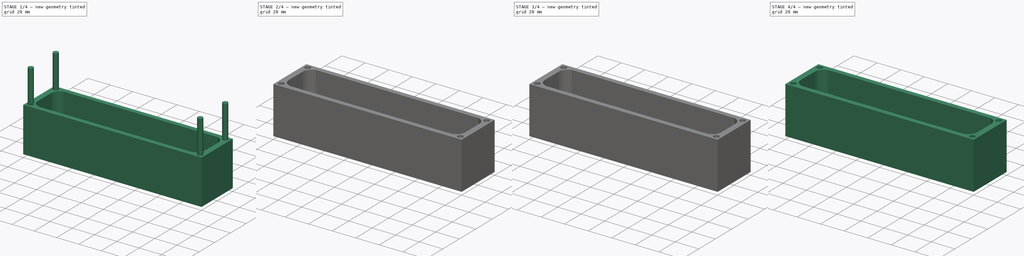
[diagram: build sequence overview — one tinted view per stage of 4, left to right]
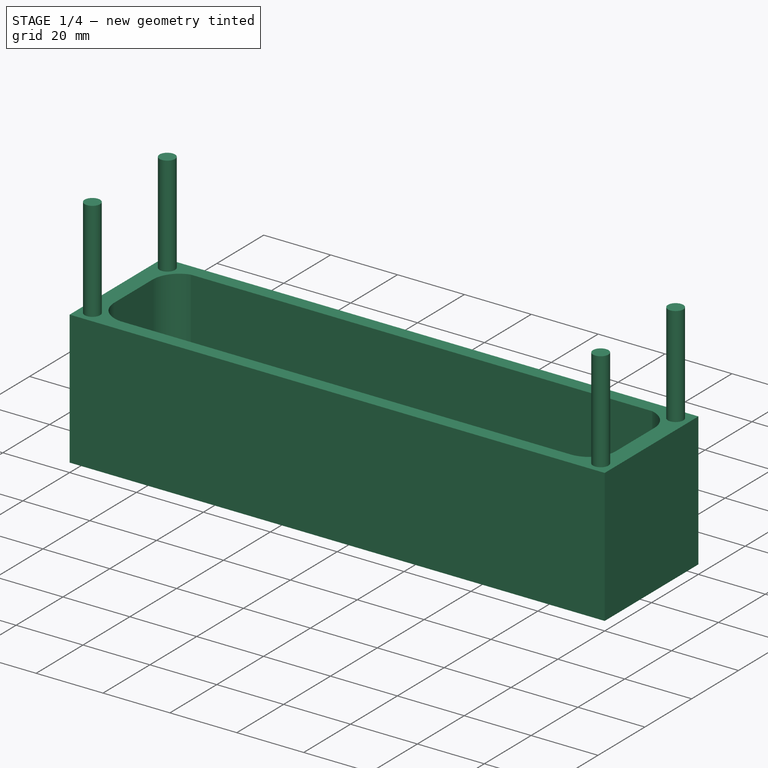
[diagram: stage 1 of 4 — iso view after this stage's code; geometry added in this stage tinted green]
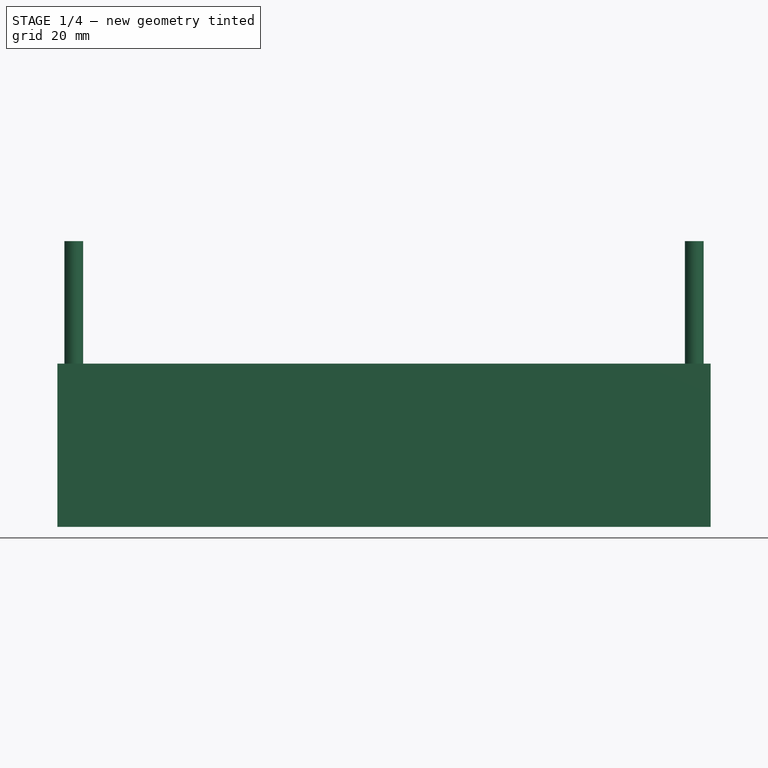
[diagram: stage 1 of 4 — front view after this stage's code; geometry added in this stage tinted green]
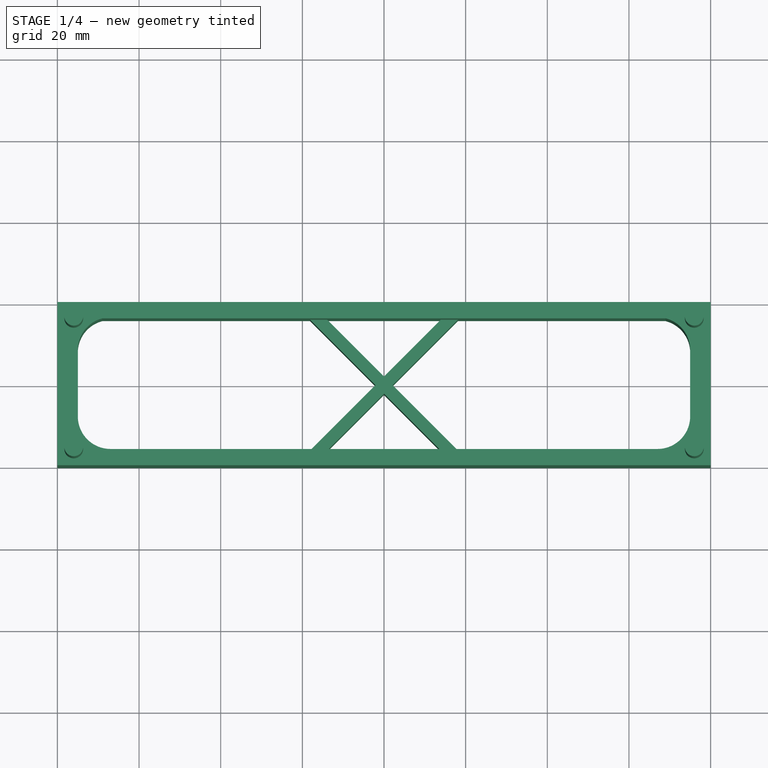
[diagram: stage 1 of 4 — top view after this stage's code; geometry added in this stage tinted green]
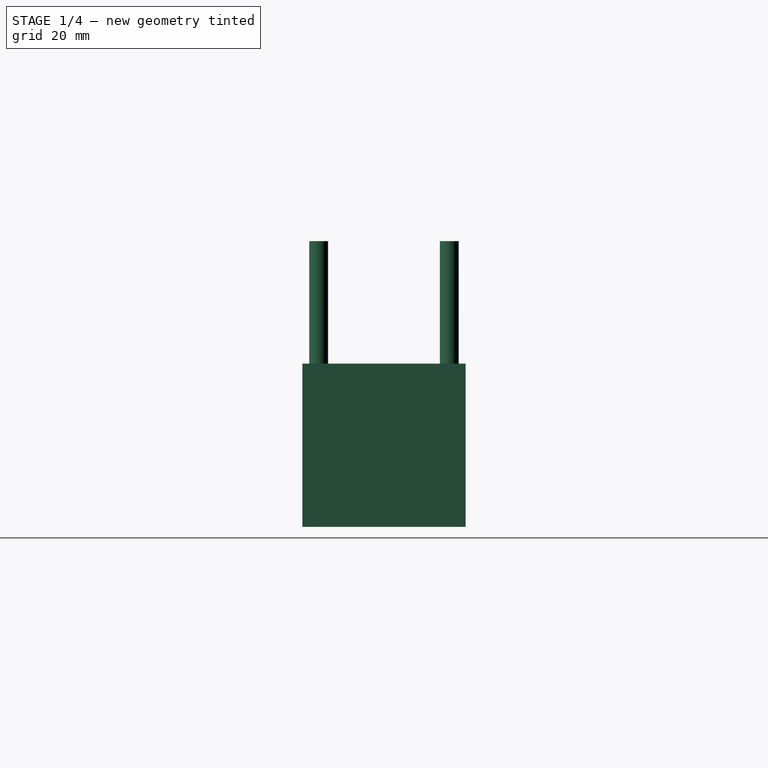
[diagram: stage 1 of 4 — right view after this stage's code; geometry added in this stage tinted green]
FCSTD DOCUMENT  (FreeCAD 0.14R3650 (Git))
Label: enclosure
License: CC-BY 3.0
LicenseURL: http://creativecommons.org/licenses/by/3.0/
objects: Sketcher::SketchObject×7, PartDesign::Pad×7, Part::Cut×3, Part::MultiFuse×3
note: 27 computed .brp shape members not serialized (recipe doc carries the construction recipe); baked Part::Feature solids carry a one-line shape summary decoded from their .brp

FEATURE [Sketcher::SketchObject] Sketch002
  sketch-geometry (12):
    g0: LineSegment StartX=-80 StartY=-20 StartZ=0 EndX=80 EndY=-20 EndZ=0
    g1: LineSegment StartX=80 StartY=-20 StartZ=0 EndX=80 EndY=20 EndZ=0
    g2: LineSegment StartX=80 StartY=20 StartZ=0 EndX=-80 EndY=20 EndZ=0
    g3: LineSegment StartX=-80 StartY=20 StartZ=0 EndX=-80 EndY=-20 EndZ=0
    g4: LineSegment StartX=75 StartY=8.25403 StartZ=0 EndX=75 EndY=-8 EndZ=0
    g5: LineSegment StartX=67 StartY=-16 StartZ=0 EndX=-67 EndY=-16 EndZ=0
    g6: LineSegment StartX=-75 StartY=-8 StartZ=0 EndX=-75 EndY=8.25403 EndZ=0
    g7: ArcOfCircle CenterX=-67 CenterY=8.25403 CenterZ=0 NormalX=0 NormalY=0 NormalZ=1 Radius=8 StartAngle=1.82348 EndAngle=3.14159
    g8: ArcOfCircle CenterX=-67 CenterY=-8 CenterZ=0 NormalX=0 NormalY=0 NormalZ=1 Radius=8 StartAngle=3.14159 EndAngle=4.71239
    g9: ArcOfCircle CenterX=67 CenterY=8.25403 CenterZ=0 NormalX=0 NormalY=0 NormalZ=1 Radius=8 StartAngle=0 EndAngle=1.31812
    g10: ArcOfCircle CenterX=67 CenterY=-8 CenterZ=0 NormalX=0 NormalY=0 NormalZ=1 Radius=8 StartAngle=4.71239 EndAngle=6.28319
    g11: LineSegment StartX=-69 StartY=16 StartZ=0 EndX=69 EndY=16 EndZ=0
  constraints (34):
    c: Horizontal(g0)
    c: Coincident(g0,g1)
    c: Vertical(g1)
    c: Horizontal(g2)
    c: Coincident(g3,g0)
    c: Vertical(g3)
    c: Distance(g0) = 160
    c: Symmetric(g0,g0,g-2)
    c: DistanceY(g2,g0) = -40
    c: DistanceY(g-1,g0) = -20
    c: Coincident(g3,g2)
    c: Coincident(g1,g2)
    c: Horizontal(g5)
    c: Vertical(g4)
    c: Vertical(g6)
    c: Tangent(g6,g7)
    c: Tangent(g5,g8)
    c: Tangent(g6,g8)
    c: Tangent(g4,g9)
    c: Tangent(g4,g10)
    c: Tangent(g5,g10)
    c: Radius(g7) = 8
    c: Radius(g8) = 8
    c: Radius(g9) = 8
    c: Radius(g10) = 8
    c: DistanceY(g5,g0) = -4
    c: DistanceX(g2,g6) = 5
    c: DistanceX(g4,g1) = 5
    c: Coincident(g11,g7)
    c: Coincident(g11,g9)
    c: Horizontal(g11)
    c: DistanceY(g7,g2) = 4
    c: Symmetric(g7,g9,g-2)
    c: DistanceX(g6,g7) = 6
FEATURE [PartDesign::Pad] Pad002  label="Sidewall Solid"
  Length = 40
  Length2 = 100
  Sketch = -> Sketch002
  Type = 0
FEATURE [Sketcher::SketchObject] Sketch006
  sketch-geometry (8):
    g0: Circle CenterX=-76 CenterY=16 CenterZ=0 NormalX=0 NormalY=0 NormalZ=1 Radius=2.3
    g1: Circle CenterX=-76 CenterY=-16 CenterZ=0 NormalX=0 NormalY=0 NormalZ=1 Radius=2.3
    g2: Circle CenterX=76 CenterY=16 CenterZ=0 NormalX=0 NormalY=0 NormalZ=1 Radius=2.3
    g3: Circle CenterX=76 CenterY=-16 CenterZ=0 NormalX=0 NormalY=0 NormalZ=1 Radius=2.3
    g4: LineSegment [constr] StartX=-76 StartY=16 StartZ=0 EndX=76 EndY=16 EndZ=0
    g5: LineSegment [constr] StartX=76 StartY=16 StartZ=0 EndX=76 EndY=-16 EndZ=0
    g6: LineSegment [constr] StartX=76 StartY=-16 StartZ=0 EndX=-76 EndY=-16 EndZ=0
    g7: LineSegment [constr] StartX=-76 StartY=-16 StartZ=0 EndX=-76 EndY=16 EndZ=0
  constraints (20):
    c: Radius(g0) = 2.3
    c: Radius(g1) = 2.3
    c: Radius(g3) = 2.3
    c: Radius(g2) = 2.3
    c: Coincident(g4,g5)
    c: Coincident(g5,g6)
    c: Horizontal(g4)
    c: Horizontal(g6)
    c: Vertical(g5)
    c: Vertical(g7)
    c: Distance(g4,g6) = 32
    c: Symmetric(g4,g4,g-2)
    c: Coincident(g4,g7)
    c: Coincident(g6,g7)
    c: Symmetric(g4,g6,g-1)
    c: Distance(g4,g4) = 152
    c: Coincident(g0,g4)
    c: Coincident(g1,g6)
    c: Coincident(g2,g4)
    c: Coincident(g3,g5)
FEATURE [PartDesign::Pad] Pad005  label="Back Panel Screw Holes"
  Length = 70
  Length2 = 100
  Sketch = -> Sketch006
  Type = 0
FEATURE [Sketcher::SketchObject] Sketch007
  sketch-geometry (12):
    g0: LineSegment StartX=-21.1213 StartY=19 StartZ=0 EndX=-2.12132 EndY=0 EndZ=0
    g1: LineSegment StartX=-2.12132 StartY=0 StartZ=0 EndX=-21.1213 EndY=-19 EndZ=0
    g2: LineSegment StartX=-21.1213 StartY=-19 StartZ=0 EndX=-16.8787 EndY=-19 EndZ=0
    g3: LineSegment StartX=-16.8787 StartY=-19 StartZ=0 EndX=0 EndY=-2.12132 EndZ=0
    g4: LineSegment StartX=0 StartY=-2.12132 StartZ=0 EndX=16.8787 EndY=-19 EndZ=0
    g5: LineSegment StartX=16.8787 StartY=-19 StartZ=0 EndX=21.1213 EndY=-19 EndZ=0
    g6: LineSegment StartX=21.1213 StartY=-19 StartZ=0 EndX=2.12132 EndY=0 EndZ=0
    g7: LineSegment StartX=2.12132 StartY=0 StartZ=0 EndX=21.1213 EndY=19 EndZ=0
    g8: LineSegment StartX=21.1213 StartY=19 StartZ=0 EndX=16.8787 EndY=19 EndZ=0
    g9: LineSegment StartX=16.8787 StartY=19 StartZ=0 EndX=0 EndY=2.12132 EndZ=0
    g10: LineSegment StartX=0 StartY=2.12132 StartZ=0 EndX=-16.8787 EndY=19 EndZ=0
    g11: LineSegment StartX=-16.8787 StartY=19 StartZ=0 EndX=-21.1213 EndY=19 EndZ=0
  constraints (34):
    c: PointOnObject(g0,g-1)
    c: Coincident(g0,g1)
    c: Coincident(g1,g2)
    c: Horizontal(g2)
    c: Coincident(g2,g3)
    c: Coincident(g3,g4)
    c: Coincident(g4,g5)
    c: Coincident(g5,g6)
    c: Coincident(g6,g7)
    c: Coincident(g7,g8)
    c: Coincident(g8,g9)
    c: Coincident(g9,g10)
    c: Coincident(g10,g11)
    c: Coincident(g11,g0)
    c: Horizontal(g11)
    c: Parallel(g0,g10)
    c: Parallel(g9,g7)
    c: Parallel(g1,g3)
    c: Parallel(g4,g6)
    c: Angle(g9,g10) = 1.5708
    c: Angle(g6,g7) = 1.5708
    c: Horizontal(g5)
    c: Tangent(g10,g6)
    c: Tangent(g0,g4)
    c: Tangent(g1,g9)
    c: Tangent(g3,g7)
    c: Distance(g9,g6) = 3
    c: Distance(g3,g6) = 3
    c: Horizontal(g8)
    c: Symmetric(g0,g1,g-1)
    c: DistanceY(g10,g8) = 0
    c: DistanceY(g4,g2) = 0
    c: DistanceY(g0,g1) = -38
    c: Symmetric(g0,g6,g-2)
FEATURE [PartDesign::Pad] Pad006  label="X Support"
  Length = 20
  Length2 = 100
  Sketch = -> Sketch007
  Type = 0
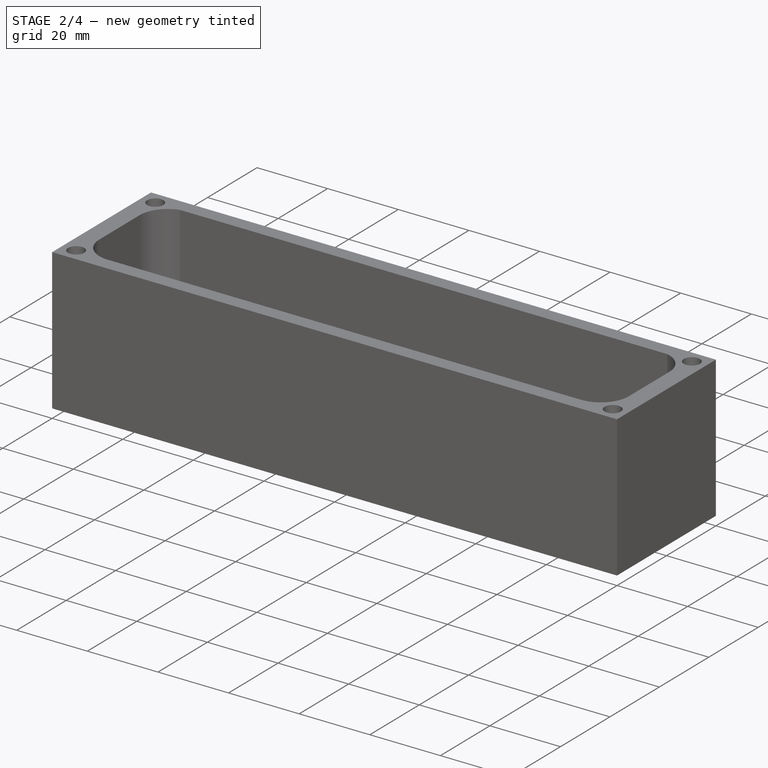
[diagram: stage 2 of 4 — iso view after this stage's code; geometry added in this stage tinted green]
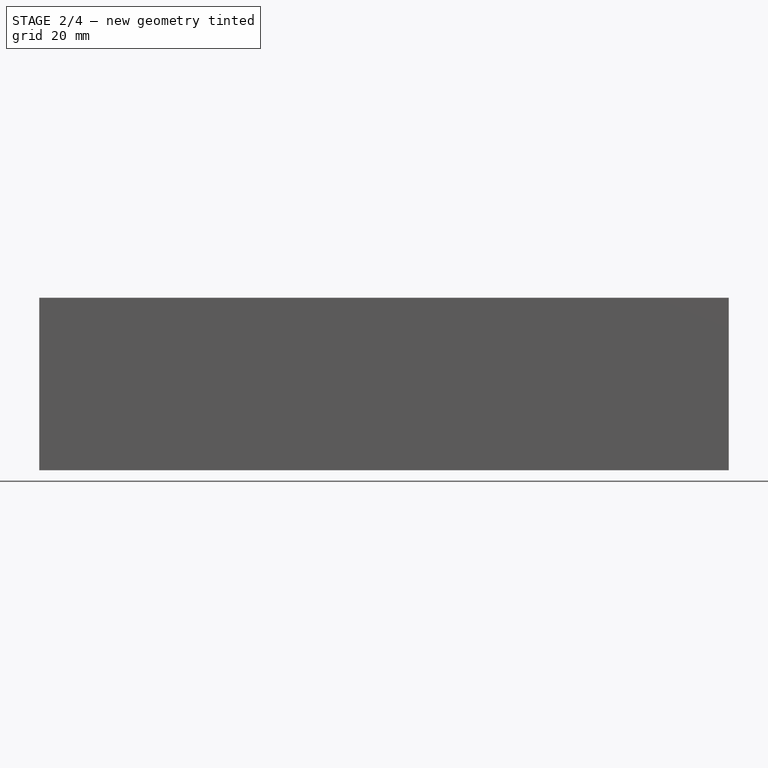
[diagram: stage 2 of 4 — front view after this stage's code; geometry added in this stage tinted green]
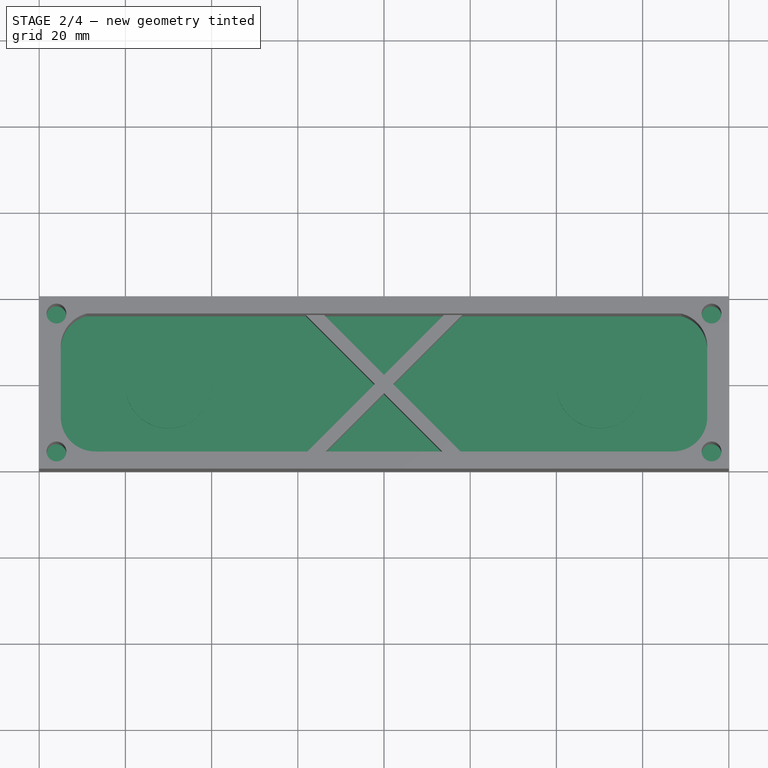
[diagram: stage 2 of 4 — top view after this stage's code; geometry added in this stage tinted green]
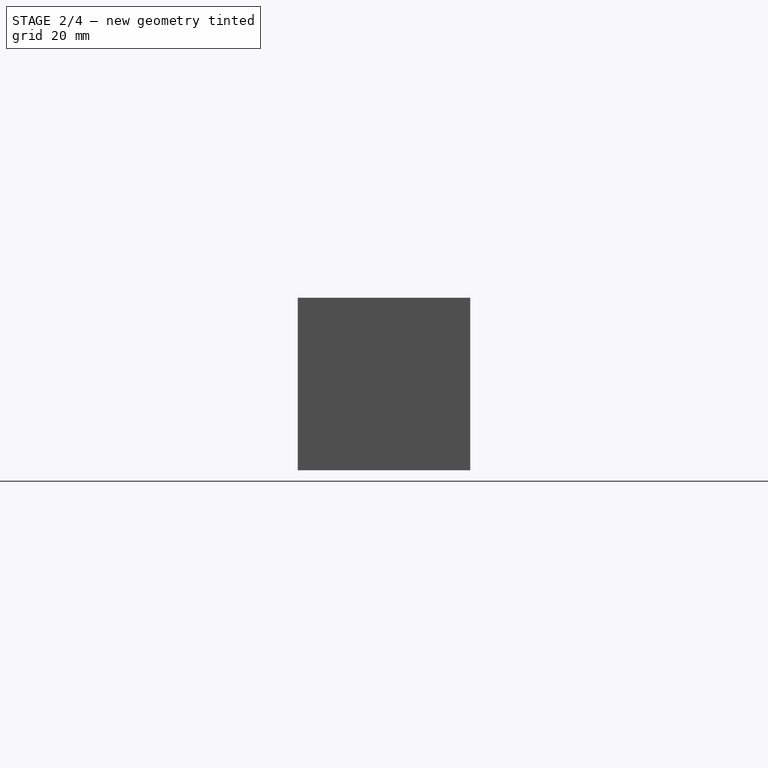
[diagram: stage 2 of 4 — right view after this stage's code; geometry added in this stage tinted green]
FEATURE [Sketcher::SketchObject] Sketch
  sketch-geometry (2):
    g0: Circle CenterX=-50 CenterY=0 CenterZ=0 NormalX=0 NormalY=0 NormalZ=1 Radius=10
    g1: Circle CenterX=50 CenterY=0 CenterZ=0 NormalX=0 NormalY=0 NormalZ=1 Radius=10
  constraints (6):
    c: PointOnObject(g0,g-1)
    c: PointOnObject(g1,g-1)
    c: Distance(g0,g1) = 100
    c: Symmetric(g0,g1,g-2)
    c: Radius(g0) = 10
    c: Radius(g1) = 10
FEATURE [Sketcher::SketchObject] Sketch001
  sketch-geometry (4):
    g0: LineSegment StartX=-80 StartY=20 StartZ=0 EndX=80 EndY=20 EndZ=0
    g1: LineSegment StartX=80 StartY=20 StartZ=0 EndX=80 EndY=-20 EndZ=0
    g2: LineSegment StartX=80 StartY=-20 StartZ=0 EndX=-80 EndY=-20 EndZ=0
    g3: LineSegment StartX=-80 StartY=-20 StartZ=0 EndX=-80 EndY=20 EndZ=0
  constraints (12):
    c: Coincident(g1,g2)
    c: Coincident(g2,g3)
    c: Horizontal(g0)
    c: Horizontal(g2)
    c: Vertical(g1)
    c: Vertical(g3)
    c: Symmetric(g2,g1,g-2)
    c: Distance(g2,g1) = 160
    c: DistanceY(g2,g0) = 40
    c: DistanceY(g-1,g0) = 20
    c: Coincident(g3,g0)
    c: Coincident(g0,g1)
FEATURE [PartDesign::Pad] Pad  label="Front Face Solid"
  Length = 3
  Length2 = 100
  Sketch = -> Sketch001
  Type = 0
FEATURE [PartDesign::Pad] Pad001  label="Lens Holes"
  Length = 5
  Length2 = 100
  Sketch = -> Sketch
  Type = 0
FEATURE [Part::Cut] Cut002  label="Sidewall"
  Base = -> Pad002
  Tool = -> Pad005
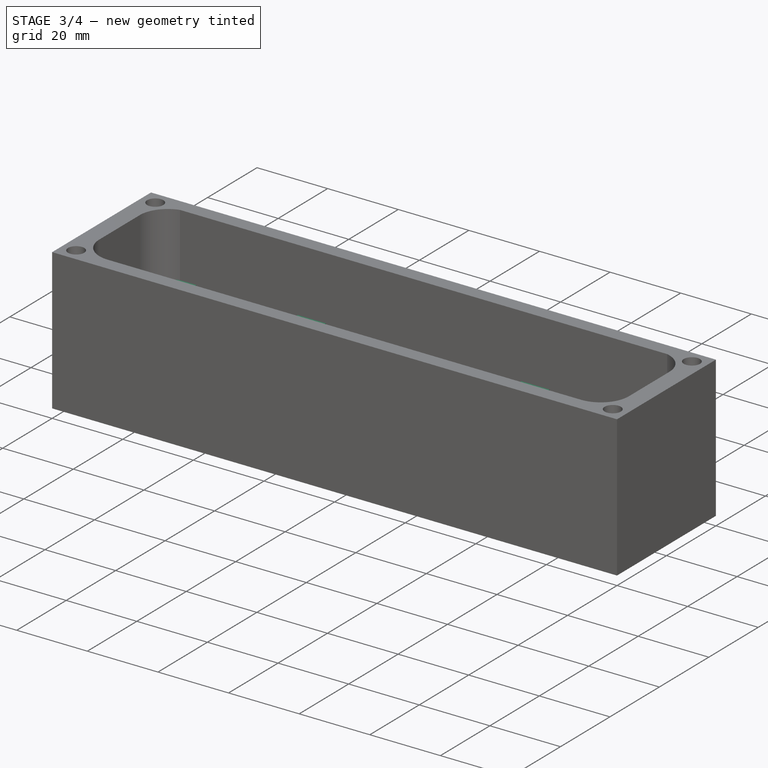
[diagram: stage 3 of 4 — iso view after this stage's code; geometry added in this stage tinted green]
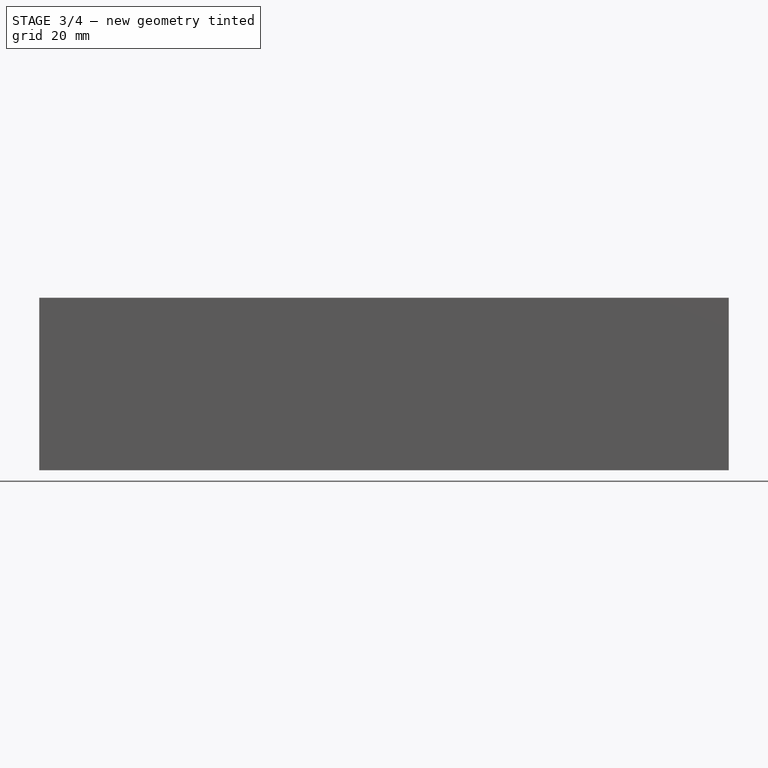
[diagram: stage 3 of 4 — front view after this stage's code; geometry added in this stage tinted green]
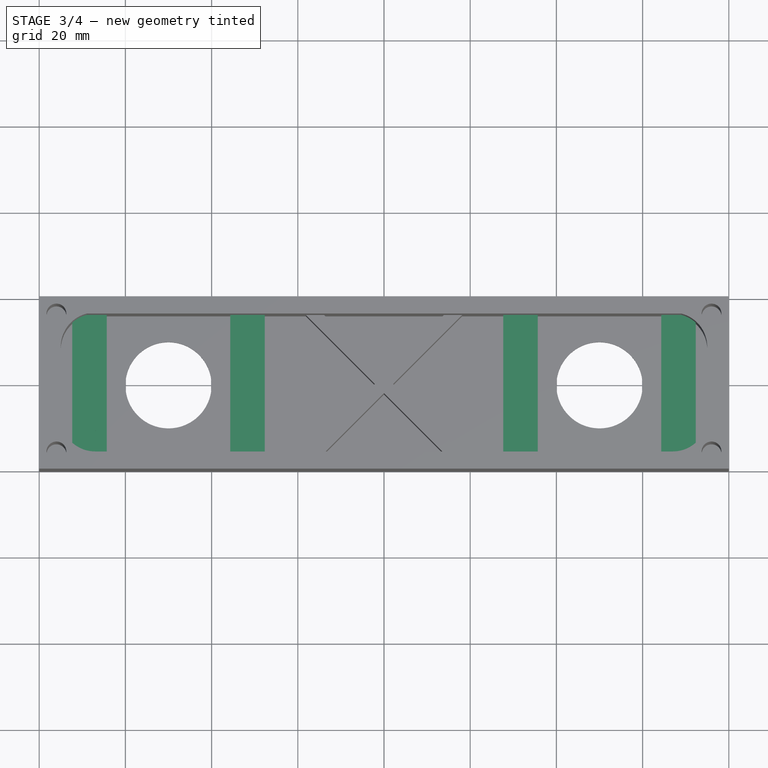
[diagram: stage 3 of 4 — top view after this stage's code; geometry added in this stage tinted green]
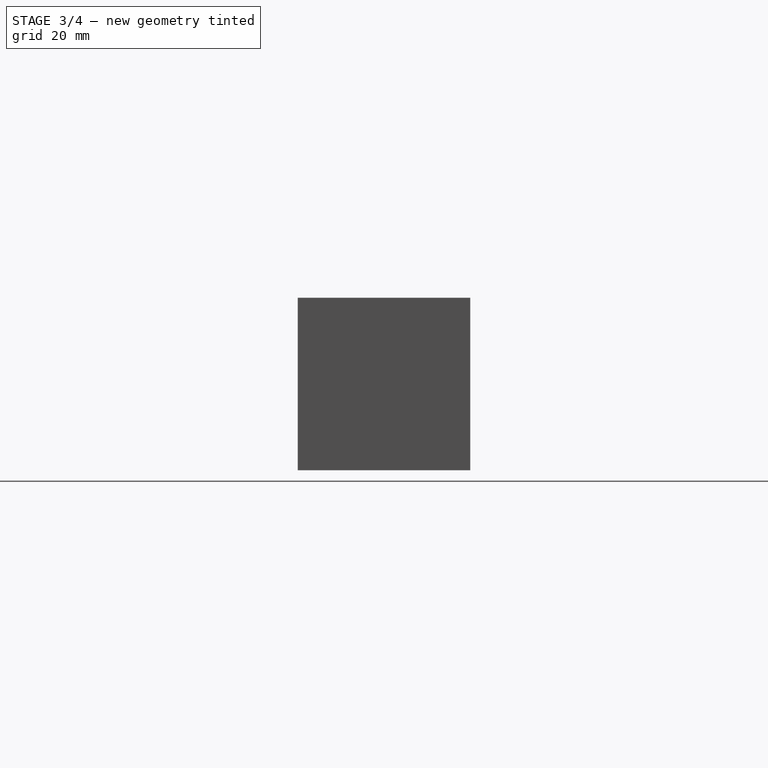
[diagram: stage 3 of 4 — right view after this stage's code; geometry added in this stage tinted green]
FEATURE [Part::Cut] Cut  label="Front Face"
  Base = -> Pad
  Tool = -> Pad001
FEATURE [Sketcher::SketchObject] Sketch004
  sketch-geometry (26):
    g0: LineSegment [constr] StartX=-50 StartY=32.4342 StartZ=0 EndX=-50 EndY=-32.4342 EndZ=0
    g1: LineSegment [constr] StartX=50 StartY=32.4342 StartZ=0 EndX=50 EndY=-32.4342 EndZ=0
    g2: LineSegment [constr] StartX=-68.335 StartY=10.855 StartZ=0 EndX=-31.665 EndY=10.855 EndZ=0
    g3: LineSegment [constr] StartX=-31.665 StartY=10.855 StartZ=0 EndX=-31.665 EndY=-10.855 EndZ=0
    g4: LineSegment [constr] StartX=-31.665 StartY=-10.855 StartZ=0 EndX=-68.335 EndY=-10.855 EndZ=0
    g5: LineSegment [constr] StartX=-68.335 StartY=-10.855 StartZ=0 EndX=-68.335 EndY=10.855 EndZ=0
    g6: LineSegment [constr] StartX=31.665 StartY=10.855 StartZ=0 EndX=68.335 EndY=10.855 EndZ=0
    g7: LineSegment [constr] StartX=68.335 StartY=10.855 StartZ=0 EndX=68.335 EndY=-10.855 EndZ=0
    g8: LineSegment [constr] StartX=68.335 StartY=-10.855 StartZ=0 EndX=31.665 EndY=-10.855 EndZ=0
    g9: LineSegment [constr] StartX=31.665 StartY=-10.855 StartZ=0 EndX=31.665 EndY=10.855 EndZ=0
    g10: LineSegment StartX=-72.335 StartY=19 StartZ=0 EndX=-64.335 EndY=19 EndZ=0
    g11: LineSegment StartX=-64.335 StartY=19 StartZ=0 EndX=-64.335 EndY=-19 EndZ=0
    g12: LineSegment StartX=-64.335 StartY=-19 StartZ=0 EndX=-72.335 EndY=-19 EndZ=0
    g13: LineSegment StartX=-72.335 StartY=-19 StartZ=0 EndX=-72.335 EndY=19 EndZ=0
    g14: LineSegment StartX=-35.665 StartY=19 StartZ=0 EndX=-27.665 EndY=19 EndZ=0
    g15: LineSegment StartX=-27.665 StartY=19 StartZ=0 EndX=-27.665 EndY=-19 EndZ=0
    g16: LineSegment StartX=-27.665 StartY=-19 StartZ=0 EndX=-35.665 EndY=-19 EndZ=0
    g17: LineSegment StartX=-35.665 StartY=-19 StartZ=0 EndX=-35.665 EndY=19 EndZ=0
    g18: LineSegment StartX=27.665 StartY=19 StartZ=0 EndX=35.665 EndY=19 EndZ=0
    g19: LineSegment StartX=35.665 StartY=19 StartZ=0 EndX=35.665 EndY=-19 EndZ=0
    g20: LineSegment StartX=35.665 StartY=-19 StartZ=0 EndX=27.665 EndY=-19 EndZ=0
    g21: LineSegment StartX=27.665 StartY=-19 StartZ=0 EndX=27.665 EndY=19 EndZ=0
    g22: LineSegment StartX=64.335 StartY=19 StartZ=0 EndX=72.335 EndY=19 EndZ=0
    g23: LineSegment StartX=72.335 StartY=19 StartZ=0 EndX=72.335 EndY=-19 EndZ=0
    g24: LineSegment StartX=72.335 StartY=-19 StartZ=0 EndX=64.335 EndY=-19 EndZ=0
    g25: LineSegment StartX=64.335 StartY=-19 StartZ=0 EndX=64.335 EndY=19 EndZ=0
  constraints (76):
    c: Vertical(g1)
    c: DistanceX(g0,g1) = 100
    c: Symmetric(g0,g1,g-2)
    c: Distance(g0) = 64.8685
    c: Equal(g1,g0)
    c: Symmetric(g0,g0,g-1)
    c: Coincident(g2,g3)
    c: Coincident(g3,g4)
    c: Coincident(g4,g5)
    c: Coincident(g5,g2)
    c: Horizontal(g2)
    c: Horizontal(g4)
    c: Vertical(g3)
    c: Coincident(g6,g7)
    c: Coincident(g7,g8)
    c: Coincident(g8,g9)
    c: Coincident(g9,g6)
    c: Horizontal(g6)
    c: Horizontal(g8)
    c: Vertical(g7)
    c: Symmetric(g2,g2,g0)
    c: Symmetric(g2,g4,g-1)
    c: Symmetric(g6,g6,g1)
    c: Symmetric(g6,g8,g-1)
    c: Distance(g2,g2) = 36.67
    c: Distance(g2,g4) = 21.71
    c: Distance(g6,g6) = 36.67
    c: Distance(g6,g8) = 21.71
    c: Coincident(g10,g11)
    c: Coincident(g11,g12)
    c: Coincident(g12,g13)
    c: Coincident(g13,g10)
    c: Horizontal(g10)
    c: Horizontal(g12)
    c: Vertical(g11)
    c: Vertical(g13)
    c: Symmetric(g10,g12,g-1)
    c: Symmetric(g10,g10,g5)
    c: Distance(g10,g10) = 8
    c: Distance(g12,g10) = 38
    c: Coincident(g14,g15)
    c: Coincident(g15,g16)
    c: Coincident(g16,g17)
    c: Coincident(g17,g14)
    c: Horizontal(g14)
    c: Horizontal(g16)
    c: Vertical(g15)
    c: Vertical(g17)
    c: Coincident(g18,g19)
    c: Coincident(g19,g20)
    c: Coincident(g20,g21)
    c: Coincident(g21,g18)
    c: Horizontal(g18)
    c: Horizontal(g20)
    c: Vertical(g19)
    c: Vertical(g21)
    c: Coincident(g22,g23)
    c: Coincident(g23,g24)
    c: Coincident(g24,g25)
    c: Coincident(g25,g22)
    c: Horizontal(g22)
    c: Horizontal(g24)
    c: Vertical(g23)
    c: Vertical(g25)
    c: Symmetric(g14,g14,g3)
    c: Symmetric(g14,g16,g-1)
    c: Equal(g13,g17)
    c: Equal(g17,g21)
    c: Equal(g21,g25)
    c: Equal(g10,g14)
    c: Equal(g14,g18)
    c: Equal(g18,g22)
    c: Symmetric(g18,g20,g-1)
    c: Symmetric(g18,g18,g9)
    c: Symmetric(g22,g24,g-1)
    c: Symmetric(g22,g22,g7)
FEATURE [PartDesign::Pad] Pad003  label="Pylon Solids"
  Length = 22
  Length2 = 100
  Sketch = -> Sketch004
  Type = 0
FEATURE [Sketcher::SketchObject] Sketch005
  sketch-geometry (10):
    g0: Circle CenterX=-68.335 CenterY=10.855 CenterZ=0 NormalX=0 NormalY=0 NormalZ=1 Radius=1.5
    g1: Circle CenterX=-31.665 CenterY=10.855 CenterZ=0 NormalX=0 NormalY=0 NormalZ=1 Radius=1.5
    g2: Circle CenterX=-68.335 CenterY=-10.855 CenterZ=0 NormalX=0 NormalY=0 NormalZ=1 Radius=1.5
    g3: Circle CenterX=-31.665 CenterY=-10.855 CenterZ=0 NormalX=0 NormalY=0 NormalZ=1 Radius=1.5
    g4: Circle CenterX=31.665 CenterY=10.855 CenterZ=0 NormalX=0 NormalY=0 NormalZ=1 Radius=1.5
    g5: Circle CenterX=31.665 CenterY=-10.855 CenterZ=0 NormalX=0 NormalY=0 NormalZ=1 Radius=1.5
    g6: Circle CenterX=68.335 CenterY=10.855 CenterZ=0 NormalX=0 NormalY=0 NormalZ=1 Radius=1.5
    g7: Circle CenterX=68.335 CenterY=-10.855 CenterZ=0 NormalX=0 NormalY=0 NormalZ=1 Radius=1.5
    g8: LineSegment [constr] StartX=-50 StartY=32.4342 StartZ=0 EndX=-50 EndY=-32.4342 EndZ=0
    g9: LineSegment [constr] StartX=50 StartY=32.4342 StartZ=0 EndX=50 EndY=-32.4342 EndZ=0
  constraints (25):
    c: Radius(g0) = 1.5
    c: Radius(g2) = 1.5
    c: Radius(g1) = 1.5
    c: Radius(g3) = 1.5
    c: Radius(g4) = 1.5
    c: Radius(g6) = 1.5
    c: Radius(g5) = 1.5
    c: Radius(g7) = 1.5
    c: DistanceY(g0,g2) = -21.71
    c: Distance(g0,g1) = 36.67
    c: Symmetric(g2,g0,g-1)
    c: Symmetric(g1,g3,g-1)
    c: Vertical(g9)
    c: DistanceX(g8,g9) = 100
    c: Symmetric(g8,g9,g-2)
    c: Symmetric(g0,g1,g8)
    c: Symmetric(g4,g5,g-1)
    c: Symmetric(g6,g7,g-1)
    c: Symmetric(g2,g3,g8)
    c: Symmetric(g4,g6,g9)
    c: Distance(g4,g5) = 21.71
    c: Distance(g4,g6) = 36.67
    c: Distance(g8) = 64.8685
    c: Equal(g9,g8)
    c: Symmetric(g8,g8,g-1)
FEATURE [PartDesign::Pad] Pad004  label="Pylon Thread Holes"
  Length = 22
  Length2 = 100
  Sketch = -> Sketch005
  Type = 0
FEATURE [Part::MultiFuse] Fusion  label="Shell"
  Shapes = -> [Cut,Cut002]
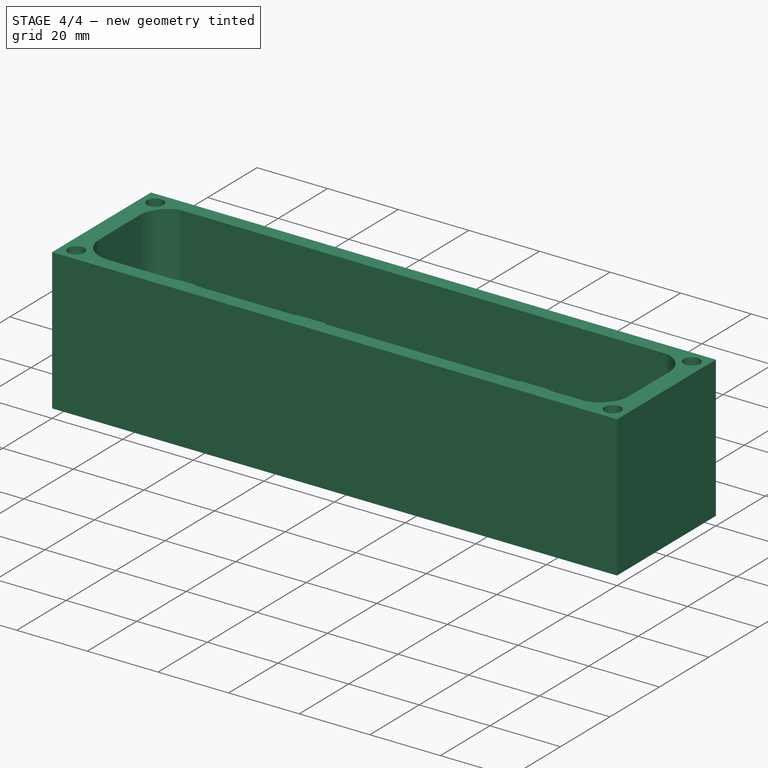
[diagram: stage 4 of 4 — iso view after this stage's code; geometry added in this stage tinted green]
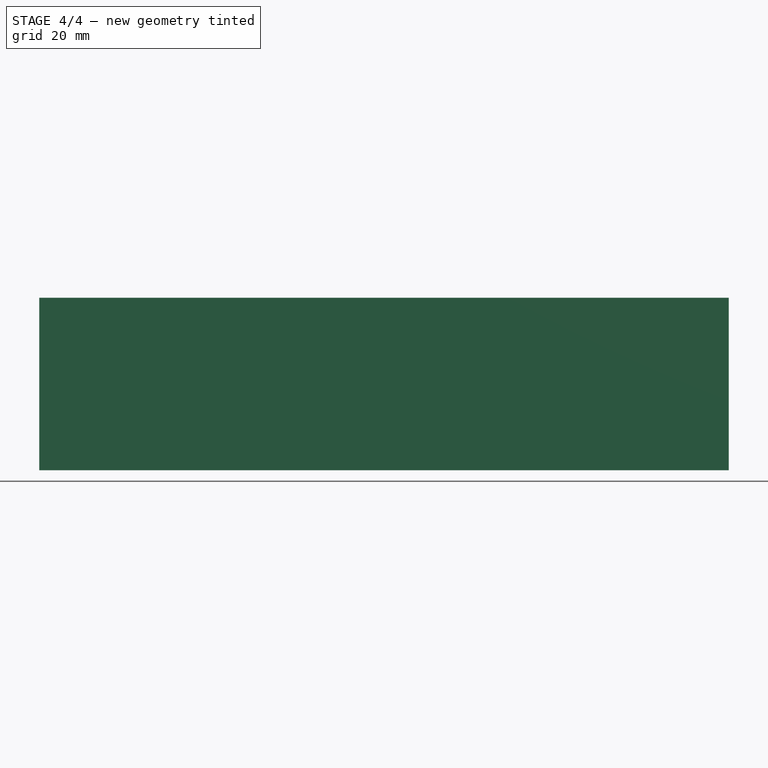
[diagram: stage 4 of 4 — front view after this stage's code; geometry added in this stage tinted green]
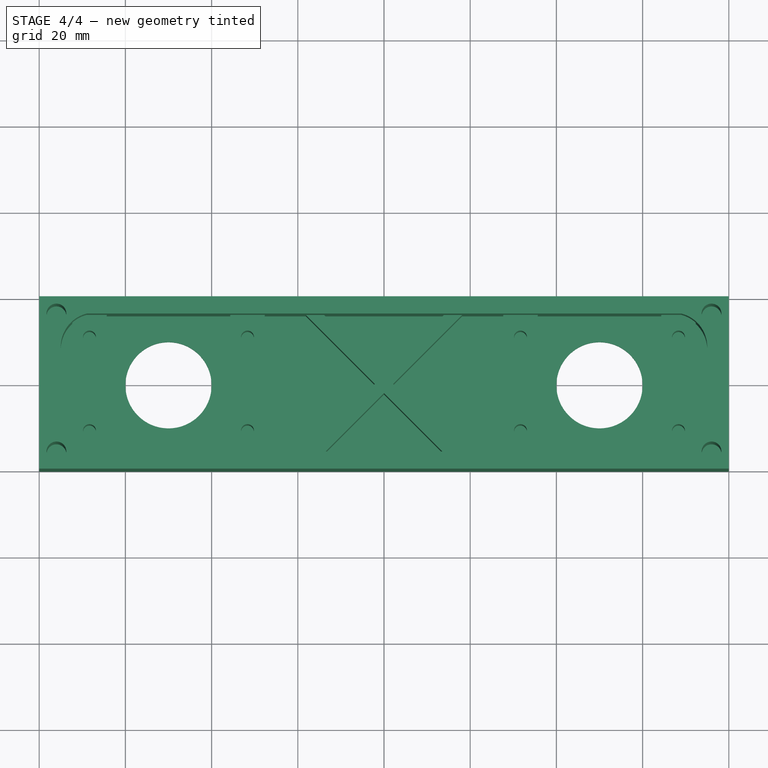
[diagram: stage 4 of 4 — top view after this stage's code; geometry added in this stage tinted green]
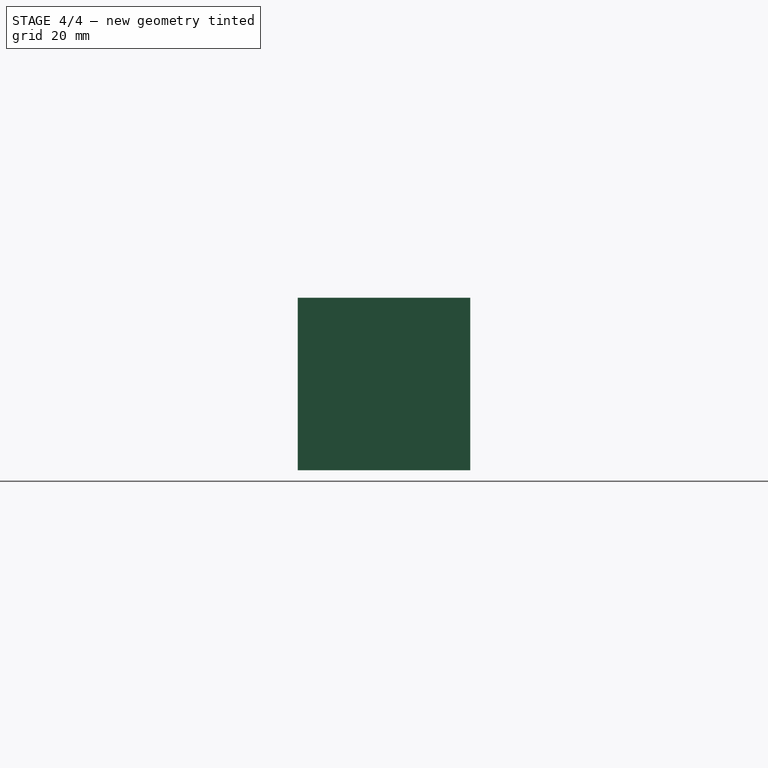
[diagram: stage 4 of 4 — right view after this stage's code; geometry added in this stage tinted green]
FEATURE [Part::Cut] Cut001  label="Pylons"
  Base = -> Pad003
  Tool = -> Pad004
FEATURE [Part::MultiFuse] Fusion001  label="Whole"
  Shapes = -> [Fusion,Cut001]
FEATURE [Part::MultiFuse] Fusion002
  Shapes = -> [Pad006,Fusion001]
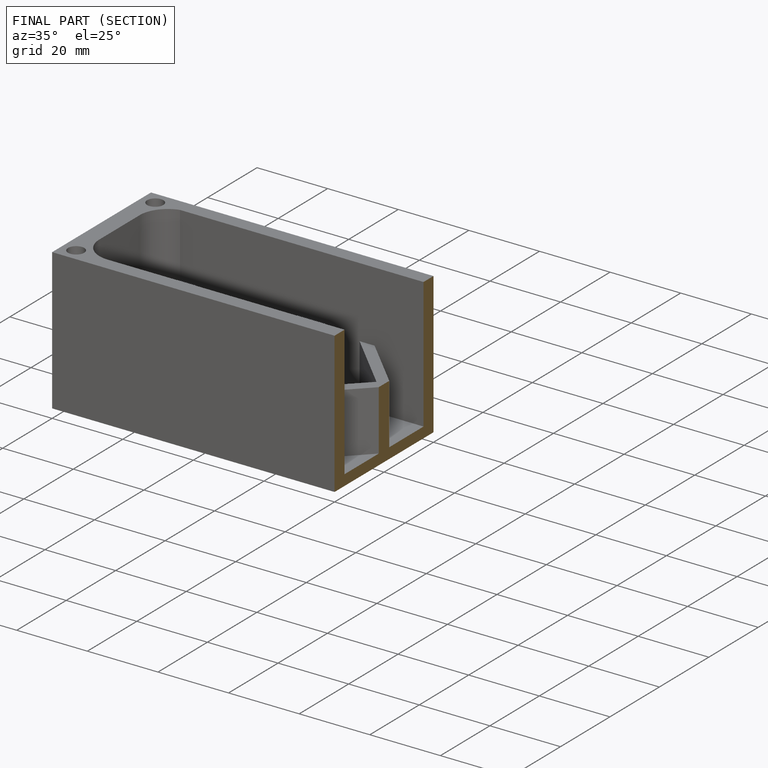
[diagram: finished part — half-section view (interior)]
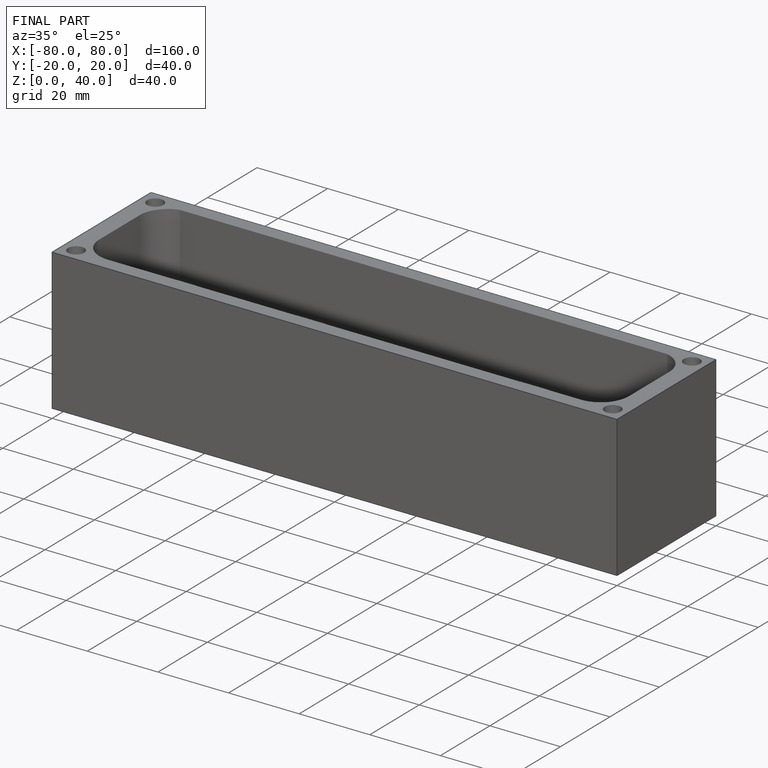
[diagram: finished part — iso view with bounding-box wireframe]
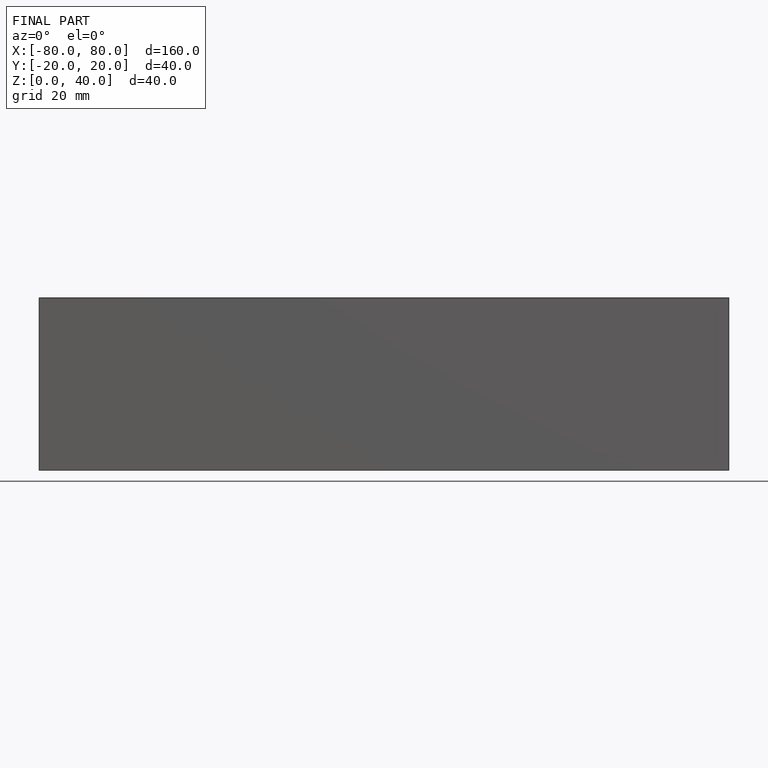
[diagram: finished part — front view with bounding-box wireframe]
